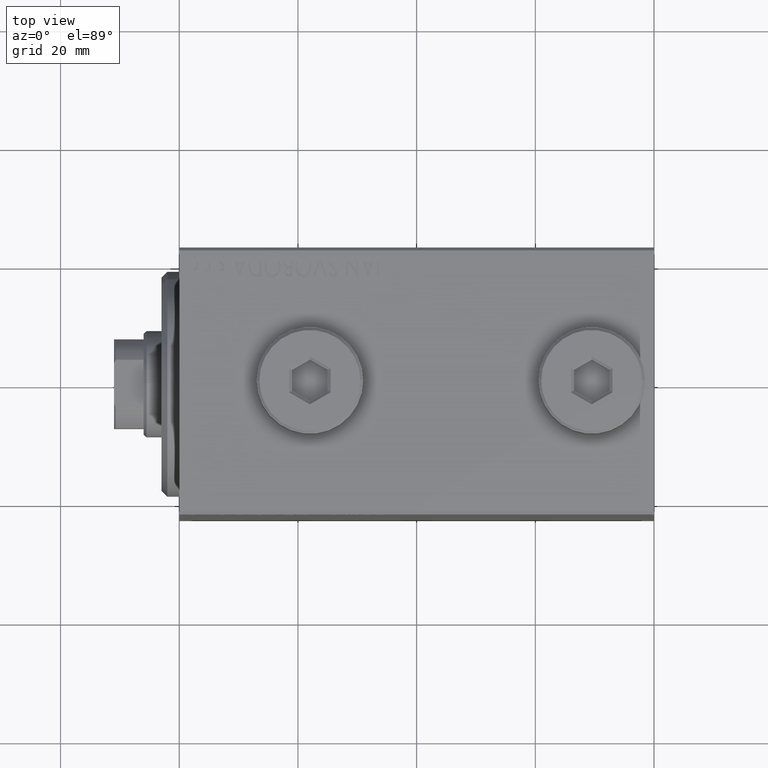
[diagram: clean part render]
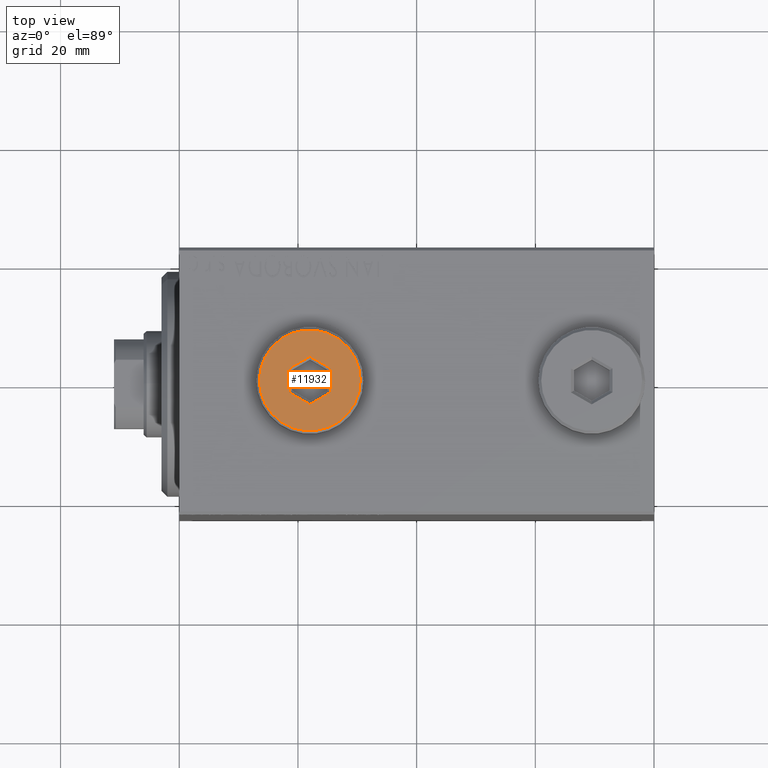
[diagram: same view with one face highlighted and labeled with its STEP entity id]
A machine part, top view. The second image highlights one B-rep face of the part: STEP entity #11932.
In plain terms, the highlighted planar face has unit normal (0, 0, 1).
Its self-contained STEP definition (entity closure, byte-faithful):
#1013 = DIRECTION ( 'NONE',  ( 1.000000000000000000, 0.000000000000000000, -0.000000000000000000 ) ) ;
#2016 = CARTESIAN_POINT ( 'NONE',  ( 8.500000000000010658, 1.071565949253934716E-15, 5.000000000000000000 ) ) ;
#3166 = VERTEX_POINT ( 'NONE', #33352 ) ;
#3391 = EDGE_LOOP ( 'NONE', ( #35132, #38702, #33892, #41896, #40096, #37603 ) ) ;
#3423 = AXIS2_PLACEMENT_3D ( 'NONE', #21104, #35050, #1013 ) ;
#3615 = EDGE_CURVE ( 'NONE', #41281, #16816, #18462, .T. ) ;
#5375 = CARTESIAN_POINT ( 'NONE',  ( -1.006139216460143630E-15, -4.041451884327387667, 5.000000000000000000 ) ) ;
#5750 = VERTEX_POINT ( 'NONE', #44398 ) ;
#5787 = AXIS2_PLACEMENT_3D ( 'NONE', #38944, #32084, #28857 ) ;
#6222 = DIRECTION ( 'NONE',  ( -0.8660254037844385966, 0.4999999999999999445, 0.000000000000000000 ) ) ;
#7712 = CARTESIAN_POINT ( 'NONE',  ( -3.500000000000006661, 1.732050807568878081, 5.000000000000000000 ) ) ;
#8793 = DIRECTION ( 'NONE',  ( 0.8660254037844387076, -0.4999999999999998890, 0.000000000000000000 ) ) ;
#10810 = EDGE_CURVE ( 'NONE', #5750, #17880, #29342, .T. ) ;
#10836 = FACE_BOUND ( 'NONE', #3391, .T. ) ;
#11356 = VERTEX_POINT ( 'NONE', #2016 ) ;
#11391 = DIRECTION ( 'NONE',  ( -0.8660254037844387076, -0.4999999999999998890, 0.000000000000000000 ) ) ;
#11566 = CARTESIAN_POINT ( 'NONE',  ( 0.000000000000000000, 0.000000000000000000, 5.000000000000000000 ) ) ;
#11932 = ADVANCED_FACE ( 'NONE', ( #10836, #42596 ), #31610, .T. ) ;
#13133 = DIRECTION ( 'NONE',  ( 0.8660254037844387076, 0.4999999999999998335, 0.000000000000000000 ) ) ;
#13563 = AXIS2_PLACEMENT_3D ( 'NONE', #11566, #18207, #21629 ) ;
#14685 = EDGE_CURVE ( 'NONE', #31635, #5750, #39879, .T. ) ;
#16420 = VECTOR ( 'NONE', #44155, 1000.000000000000000 ) ;
#16816 = VERTEX_POINT ( 'NONE', #5375 ) ;
#17880 = VERTEX_POINT ( 'NONE', #26112 ) ;
#18098 = CARTESIAN_POINT ( 'NONE',  ( -8.500000000000010658, 0.000000000000000000, 5.000000000000000000 ) ) ;
#18207 = DIRECTION ( 'NONE',  ( 0.000000000000000000, 0.000000000000000000, 1.000000000000000000 ) ) ;
#18462 = LINE ( 'NONE', #40185, #29508 ) ;
#18831 = CARTESIAN_POINT ( 'NONE',  ( 3.250000000000003109, 2.165063509461103042, 5.000000000000000000 ) ) ;
#19393 = VECTOR ( 'NONE', #8793, 1000.000000000000000 ) ;
#20232 = EDGE_CURVE ( 'NONE', #28927, #11356, #45232, .T. ) ;
#21104 = CARTESIAN_POINT ( 'NONE',  ( 0.000000000000000000, 0.000000000000000000, 5.000000000000000000 ) ) ;
#21137 = CARTESIAN_POINT ( 'NONE',  ( 3.500000000000006661, -2.020725942163693833, 5.000000000000000000 ) ) ;
#21629 = DIRECTION ( 'NONE',  ( 1.000000000000000000, 0.000000000000000000, 0.000000000000000000 ) ) ;
#21641 = DIRECTION ( 'NONE',  ( 0.000000000000000000, 1.000000000000000000, 0.000000000000000000 ) ) ;
#22206 = CARTESIAN_POINT ( 'NONE',  ( 3.500000000000006661, -1.732050807568878303, 5.000000000000000000 ) ) ;
#23566 = CARTESIAN_POINT ( 'NONE',  ( -3.250000000000003109, -2.165063509461102598, 5.000000000000000000 ) ) ;
#23800 = LINE ( 'NONE', #23566, #30343 ) ;
#25726 = ORIENTED_EDGE ( 'NONE', *, *, #20232, .T. ) ;
#25864 = EDGE_CURVE ( 'NONE', #17880, #41281, #33627, .T. ) ;
#26112 = CARTESIAN_POINT ( 'NONE',  ( 3.500000000000006661, 2.020725942163694722, 5.000000000000000000 ) ) ;
#27351 = EDGE_CURVE ( 'NONE', #11356, #28927, #44215, .T. ) ;
#27527 = VECTOR ( 'NONE', #13133, 1000.000000000000000 ) ;
#28857 = DIRECTION ( 'NONE',  ( 1.000000000000000000, 0.000000000000000000, 0.000000000000000000 ) ) ;
#28927 = VERTEX_POINT ( 'NONE', #18098 ) ;
#29342 = LINE ( 'NONE', #18831, #19393 ) ;
#29508 = VECTOR ( 'NONE', #11391, 1000.000000000000000 ) ;
#30343 = VECTOR ( 'NONE', #6222, 1000.000000000000114 ) ;
#31610 = PLANE ( 'NONE',  #3423 ) ;
#31635 = VERTEX_POINT ( 'NONE', #36037 ) ;
#31955 = EDGE_CURVE ( 'NONE', #16816, #3166, #23800, .T. ) ;
#32084 = DIRECTION ( 'NONE',  ( 0.000000000000000000, 0.000000000000000000, 1.000000000000000000 ) ) ;
#33032 = ORIENTED_EDGE ( 'NONE', *, *, #27351, .T. ) ;
#33352 = CARTESIAN_POINT ( 'NONE',  ( -3.500000000000006661, -2.020725942163694278, 5.000000000000000000 ) ) ;
#33627 = LINE ( 'NONE', #22206, #16420 ) ;
#33892 = ORIENTED_EDGE ( 'NONE', *, *, #10810, .T. ) ;
#33910 = CARTESIAN_POINT ( 'NONE',  ( -0.2500000000000027756, 3.897114317029978459, 5.000000000000000000 ) ) ;
#35050 = DIRECTION ( 'NONE',  ( 0.000000000000000000, 0.000000000000000000, 1.000000000000000000 ) ) ;
#35132 = ORIENTED_EDGE ( 'NONE', *, *, #40332, .T. ) ;
#36037 = CARTESIAN_POINT ( 'NONE',  ( -3.500000000000006661, 2.020725942163692945, 5.000000000000000000 ) ) ;
#37140 = VECTOR ( 'NONE', #21641, 1000.000000000000000 ) ;
#37603 = ORIENTED_EDGE ( 'NONE', *, *, #31955, .T. ) ;
#38702 = ORIENTED_EDGE ( 'NONE', *, *, #14685, .T. ) ;
#38944 = CARTESIAN_POINT ( 'NONE',  ( 0.000000000000000000, 0.000000000000000000, 5.000000000000000000 ) ) ;
#39249 = LINE ( 'NONE', #7712, #37140 ) ;
#39879 = LINE ( 'NONE', #33910, #27527 ) ;
#40096 = ORIENTED_EDGE ( 'NONE', *, *, #3615, .T. ) ;
#40185 = CARTESIAN_POINT ( 'NONE',  ( 0.2500000000000027756, -3.897114317029979347, 5.000000000000000000 ) ) ;
#40332 = EDGE_CURVE ( 'NONE', #3166, #31635, #39249, .T. ) ;
#41281 = VERTEX_POINT ( 'NONE', #21137 ) ;
#41896 = ORIENTED_EDGE ( 'NONE', *, *, #25864, .T. ) ;
#42596 = FACE_OUTER_BOUND ( 'NONE', #44077, .T. ) ;
#44077 = EDGE_LOOP ( 'NONE', ( #25726, #33032 ) ) ;
#44155 = DIRECTION ( 'NONE',  ( 0.000000000000000000, -1.000000000000000000, 0.000000000000000000 ) ) ;
#44215 = CIRCLE ( 'NONE', #13563, 8.500000000000010658 ) ;
#44398 = CARTESIAN_POINT ( 'NONE',  ( 1.590596867181068292E-15, 4.041451884327386779, 5.000000000000000000 ) ) ;
#45232 = CIRCLE ( 'NONE', #5787, 8.500000000000010658 ) ;